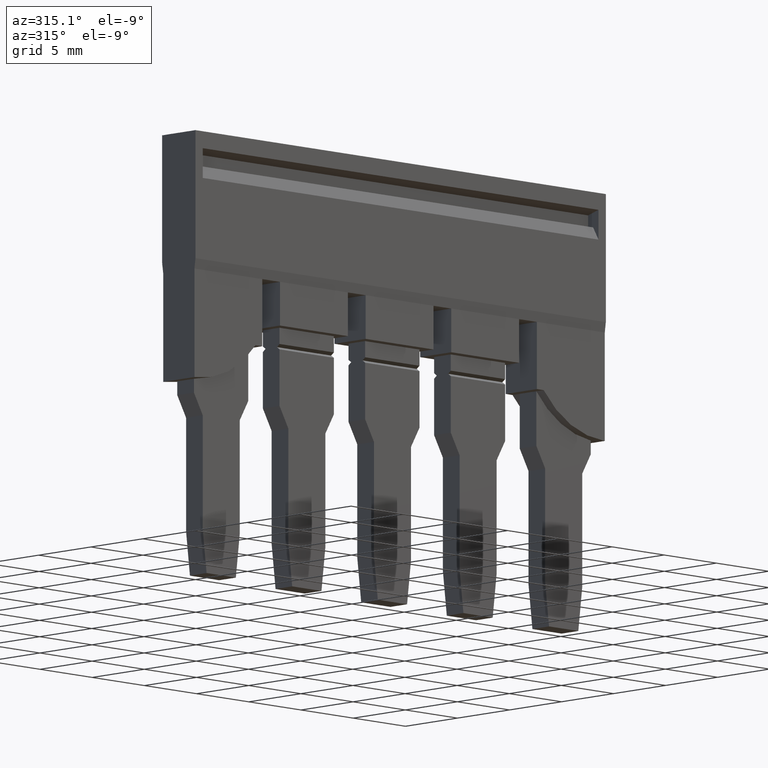
[diagram: clean part render]
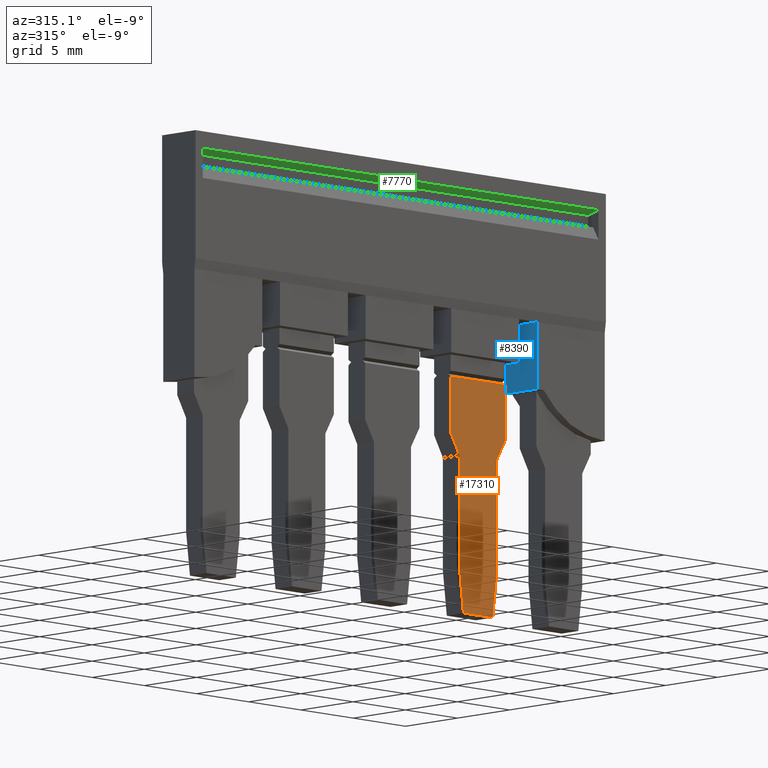
[diagram: same view with three faces highlighted in distinct colors, each labeled with its STEP entity id]
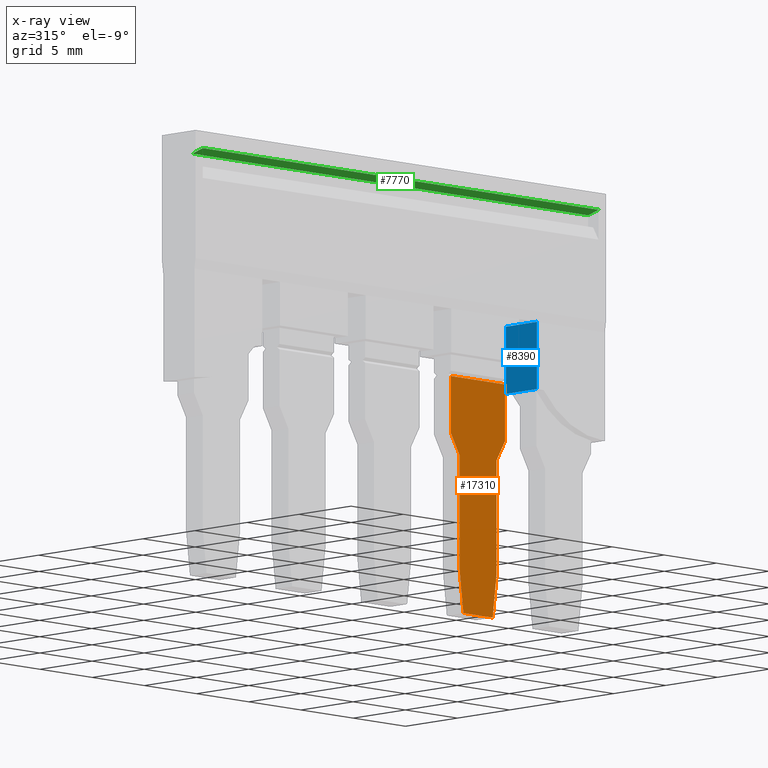
[diagram: x-ray of the same camera — body ghosted, the three highlighted faces saturated]
A machine part, auxiliary view with three faces highlighted in distinct colors.
The next image is the same camera in x-ray (body ghosted, the three faces saturated) — at least one of them is partly hidden behind the body in this view.
Their STEP definitions:

[orange] entity #17310 — the highlighted planar face has unit normal (-0, -1, -0).
#14320=CARTESIAN_POINT('',(4.98553886079778,-19.9538803596619,
44.4599999999952));
#14330=VERTEX_POINT('',#14320);
#14360=CARTESIAN_POINT('',(4.98553886079776,-19.9538803596615,
77.720265839815));
#14370=DIRECTION('',(6.12258769595452E-16,-1.01023885312291E-14,-1.));
#14380=VECTOR('',#14370,1.);
#14390=LINE('',#14360,#14380);
#14400=CARTESIAN_POINT('',(4.98553886079778,-19.9538803596618,
49.6599999999952));
#14410=VERTEX_POINT('',#14400);
#14420=EDGE_CURVE('',#14410,#14330,#14390,.T.);
#15590=CARTESIAN_POINT('',(4.98553886079778,-12.8979338181015,
48.8199999999949));
#15600=DIRECTION('',(3.97814054027038E-18,1.,-9.86325155142624E-15));
#15610=VECTOR('',#15600,1.);
#15620=LINE('',#15590,#15610);
#15630=CARTESIAN_POINT('',(4.98553886079778,-33.0792532827656,
48.8199999999951));
#15640=VERTEX_POINT('',#15630);
#15650=CARTESIAN_POINT('',(4.98553886079778,-25.2938867696535,
48.819999999995));
#15660=VERTEX_POINT('',#15650);
#15670=EDGE_CURVE('',#15640,#15660,#15620,.T.);
#16120=CARTESIAN_POINT('',(4.98553886079778,-23.838964091294,
44.4599999999955));
#16130=VERTEX_POINT('',#16120);
#16160=CARTESIAN_POINT('',(4.98553886079778,-24.2417559473248,
44.4599999999954));
#16170=DIRECTION('',(3.97814054027112E-18,1.,-1.21499990642998E-14));
#16180=VECTOR('',#16170,1.);
#16190=LINE('',#16160,#16180);
#16200=EDGE_CURVE('',#16130,#14330,#16190,.T.);
#16690=CARTESIAN_POINT('',(4.98553886079778,-28.3075095874674,
45.6280089999944));
#16700=DIRECTION('',(1.,-3.97814054026375E-18,6.12258769595452E-16));
#16710=DIRECTION('',(3.97814054027574E-18,1.,-1.95846419108003E-14));
#16720=AXIS2_PLACEMENT_3D('',#16690,#16700,#16710);
#16730=PLANE('',#16720);
#16740=CARTESIAN_POINT('',(4.98553886079777,-12.8979338181015,
51.2979544489049));
#16750=DIRECTION('',(-8.32667268468867E-17,0.992546151641323,
0.121869343405138));
#16760=VECTOR('',#16750,1.);
#16770=LINE('',#16740,#16760);
#16780=CARTESIAN_POINT('',(4.98553886079778,-36.097809818079,
48.4493678612461));
#16790=VERTEX_POINT('',#16780);
#16800=EDGE_CURVE('',#16790,#15640,#16770,.T.);
#16810=ORIENTED_EDGE('',*,*,#16800,.F.);
#16820=ORIENTED_EDGE('',*,*,#15670,.F.);
#16830=CARTESIAN_POINT('',(4.98553886079778,-34.1523076176597,
43.7055883388038));
#16840=DIRECTION('',(-2.94719322334619E-16,0.866025403784444,
0.499999999999991));
#16850=VECTOR('',#16840,1.);
#16860=LINE('',#16830,#16850);
#16870=CARTESIAN_POINT('',(4.98553886079778,-23.8389640912953,
49.6599999999952));
#16880=VERTEX_POINT('',#16870);
#16890=EDGE_CURVE('',#15660,#16880,#16860,.T.);
#16900=ORIENTED_EDGE('',*,*,#16890,.F.);
#16910=CARTESIAN_POINT('',(4.98553886079778,-34.1523076176596,
49.6599999999953));
#16920=DIRECTION('',(-3.97814054026855E-18,-1.,7.28999943857991E-15));
#16930=VECTOR('',#16920,1.);
#16940=LINE('',#16910,#16930);
#16950=EDGE_CURVE('',#14410,#16880,#16940,.T.);
#16960=ORIENTED_EDGE('',*,*,#16950,.T.);
#16970=ORIENTED_EDGE('',*,*,#14420,.F.);
#16980=ORIENTED_EDGE('',*,*,#16200,.T.);
#16990=CARTESIAN_POINT('',(4.98553886079777,-34.1523076176596,
50.4144116611879));
#17000=DIRECTION('',(-2.94719322334618E-16,-0.866025403784434,
0.500000000000008));
#17010=VECTOR('',#17000,1.);
#17020=LINE('',#16990,#17010);
#17030=CARTESIAN_POINT('',(4.98553886079778,-25.2419252453499,
45.2699999999523));
#17040=VERTEX_POINT('',#17030);
#17050=EDGE_CURVE('',#16130,#17040,#17020,.T.);
#17060=ORIENTED_EDGE('',*,*,#17050,.F.);
#17070=CARTESIAN_POINT('',(4.98553886079778,-24.2417559473248,
45.2699999999523));
#17080=DIRECTION('',(3.97814054026963E-18,1.,-9.57674695145351E-15));
#17090=VECTOR('',#17080,1.);
#17100=LINE('',#17070,#17090);
#17110=CARTESIAN_POINT('',(4.98553886079778,-33.0323992863093,
45.2699999999524));
#17120=VERTEX_POINT('',#17110);
#17130=EDGE_CURVE('',#17120,#17040,#17100,.T.);
#17140=ORIENTED_EDGE('',*,*,#17130,.T.);
#17150=CARTESIAN_POINT('',(4.98553886079778,-24.3577888801291,
44.2048917702257));
#17160=DIRECTION('',(7.2529646010219E-17,0.992546151641321,
-0.121869343405157));
#17170=VECTOR('',#17160,1.);
#17180=LINE('',#17150,#17170);
#17190=CARTESIAN_POINT('',(4.98553886079778,-36.0978098182131,
45.6463850860994));
#17200=VERTEX_POINT('',#17190);
#17210=EDGE_CURVE('',#17200,#17120,#17180,.T.);
#17220=ORIENTED_EDGE('',*,*,#17210,.T.);
#17230=CARTESIAN_POINT('',(4.98553886079779,-36.0978098189293,
30.6749840000005));
#17240=DIRECTION('',(-6.12258769597219E-16,4.78387892587514E-11,1.));
#17250=VECTOR('',#17240,1.);
#17260=LINE('',#17230,#17250);
#17270=EDGE_CURVE('',#17200,#16790,#17260,.T.);
#17280=ORIENTED_EDGE('',*,*,#17270,.F.);
#17290=EDGE_LOOP('',(#17280,#17220,#17140,#17060,#16980,#16970,#16960,
#16900,#16820,#16810));
#17300=FACE_OUTER_BOUND('',#17290,.T.);
#17310=ADVANCED_FACE('',(#17300),#16730,.T.);

[blue] entity #8390 — the highlighted planar face has unit normal (1, -0, -0).
#2710=CARTESIAN_POINT('',(2.68553886079762,-20.0808348559681,
42.1099999999978));
#2720=VERTEX_POINT('',#2710);
#2750=CARTESIAN_POINT('',(5.78553886079761,-20.0808348559681,
42.1099999999978));
#2760=DIRECTION('',(1.,9.45397489018929E-31,3.08148791101958E-33));
#2770=VECTOR('',#2760,1.);
#2780=LINE('',#2750,#2770);
#2790=CARTESIAN_POINT('',(5.68553886079762,-20.0808348559681,
42.1099999999978));
#2800=VERTEX_POINT('',#2790);
#2810=EDGE_CURVE('',#2720,#2800,#2780,.T.);
#3260=CARTESIAN_POINT('',(5.68553886079762,-12.8979338181015,
42.1099999999978));
#3270=DIRECTION('',(0.,1.,0.));
#3280=VECTOR('',#3270,1.);
#3290=LINE('',#3260,#3280);
#3300=CARTESIAN_POINT('',(5.68553886079762,-15.4678098181019,
42.1099999999978));
#3310=VERTEX_POINT('',#3300);
#3320=EDGE_CURVE('',#2800,#3310,#3290,.T.);
#8160=CARTESIAN_POINT('',(5.68553886079761,-22.8678098181019,
42.1099999999978));
#8170=DIRECTION('',(3.08148791101958E-33,0.,-1.));
#8180=DIRECTION('',(0.,-1.,0.));
#8190=AXIS2_PLACEMENT_3D('',#8160,#8170,#8180);
#8200=PLANE('',#8190);
#8210=CARTESIAN_POINT('',(2.68553886079762,-12.8979338181015,
42.1099999999978));
#8220=DIRECTION('',(0.,1.,0.));
#8230=VECTOR('',#8220,1.);
#8240=LINE('',#8210,#8230);
#8250=CARTESIAN_POINT('',(2.68553886079762,-15.4678098181019,
42.1099999999978));
#8260=VERTEX_POINT('',#8250);
#8270=EDGE_CURVE('',#2720,#8260,#8240,.T.);
#8280=ORIENTED_EDGE('',*,*,#8270,.F.);
#8290=CARTESIAN_POINT('',(5.68553886079761,-15.4678098181019,
42.1099999999978));
#8300=DIRECTION('',(1.,0.,3.08148791101958E-33));
#8310=VECTOR('',#8300,1.);
#8320=LINE('',#8290,#8310);
#8330=EDGE_CURVE('',#8260,#3310,#8320,.T.);
#8340=ORIENTED_EDGE('',*,*,#8330,.F.);
#8350=ORIENTED_EDGE('',*,*,#3320,.T.);
#8360=ORIENTED_EDGE('',*,*,#2810,.T.);
#8370=EDGE_LOOP('',(#8360,#8350,#8340,#8280));
#8380=FACE_OUTER_BOUND('',#8370,.T.);
#8390=ADVANCED_FACE('',(#8380),#8200,.F.);

[green] entity #7770 — the highlighted planar face has unit normal (0, 0.2588, 0.9659).
#100=CARTESIAN_POINT('',(5.78553886079762,-7.13383522188631,
36.3099999999988));
#110=VERTEX_POINT('',#100);
#360=CARTESIAN_POINT('',(4.78553886081712,-7.40178441431221,
36.3099999999988));
#370=VERTEX_POINT('',#360);
#400=CARTESIAN_POINT('',(5.78553886079761,-7.13383522188631,
36.3099999999988));
#410=DIRECTION('',(0.965925826289069,0.258819045102519,
2.97648875665136E-33));
#420=VECTOR('',#410,1.);
#430=LINE('',#400,#420);
#440=EDGE_CURVE('',#370,#110,#430,.T.);
#6660=CARTESIAN_POINT('',(5.78553886079762,-7.13383522188632,
47.0749840000005));
#6670=DIRECTION('',(-3.08148791101958E-33,1.23259516440783E-32,1.));
#6680=VECTOR('',#6670,1.);
#6690=LINE('',#6660,#6680);
#6700=CARTESIAN_POINT('',(5.78553886079762,-7.13383522188632,
74.2099999999993));
#6710=VERTEX_POINT('',#6700);
#6720=EDGE_CURVE('',#110,#6710,#6690,.T.);
#7540=CARTESIAN_POINT('',(5.63730266981812,-7.17355498954833,
66.0099999999988));
#7550=DIRECTION('',(-0.258819045102519,0.965925826289069,
-1.27035027852305E-32));
#7560=DIRECTION('',(-0.965925826289069,-0.258819045102519,
-2.97648875665136E-33));
#7570=AXIS2_PLACEMENT_3D('',#7540,#7550,#7560);
#7580=PLANE('',#7570);
#7590=CARTESIAN_POINT('',(4.78553886081712,-7.40178441431221,38.874984))
;
#7600=DIRECTION('',(3.08148791101958E-33,-1.23259516440783E-32,-1.));
#7610=VECTOR('',#7600,1.);
#7620=LINE('',#7590,#7610);
#7630=CARTESIAN_POINT('',(4.78553886081712,-7.40178441431221,
74.2099999999993));
#7640=VERTEX_POINT('',#7630);
#7650=EDGE_CURVE('',#7640,#370,#7620,.T.);
#7660=ORIENTED_EDGE('',*,*,#7650,.T.);
#7670=CARTESIAN_POINT('',(5.78553886079761,-7.13383522188632,
74.2099999999993));
#7680=DIRECTION('',(-0.965925826289069,-0.258819045102519,
-2.97648875665136E-33));
#7690=VECTOR('',#7680,1.);
#7700=LINE('',#7670,#7690);
#7710=EDGE_CURVE('',#6710,#7640,#7700,.T.);
#7720=ORIENTED_EDGE('',*,*,#7710,.T.);
#7730=ORIENTED_EDGE('',*,*,#6720,.T.);
#7740=ORIENTED_EDGE('',*,*,#440,.T.);
#7750=EDGE_LOOP('',(#7740,#7730,#7720,#7660));
#7760=FACE_OUTER_BOUND('',#7750,.T.);
#7770=ADVANCED_FACE('',(#7760),#7580,.F.);